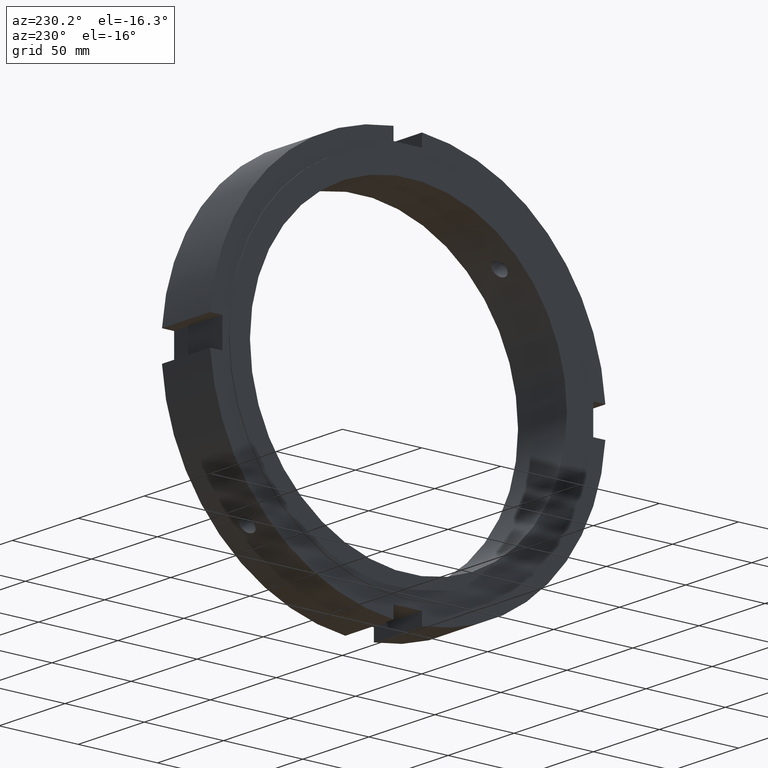
[diagram: clean part render]
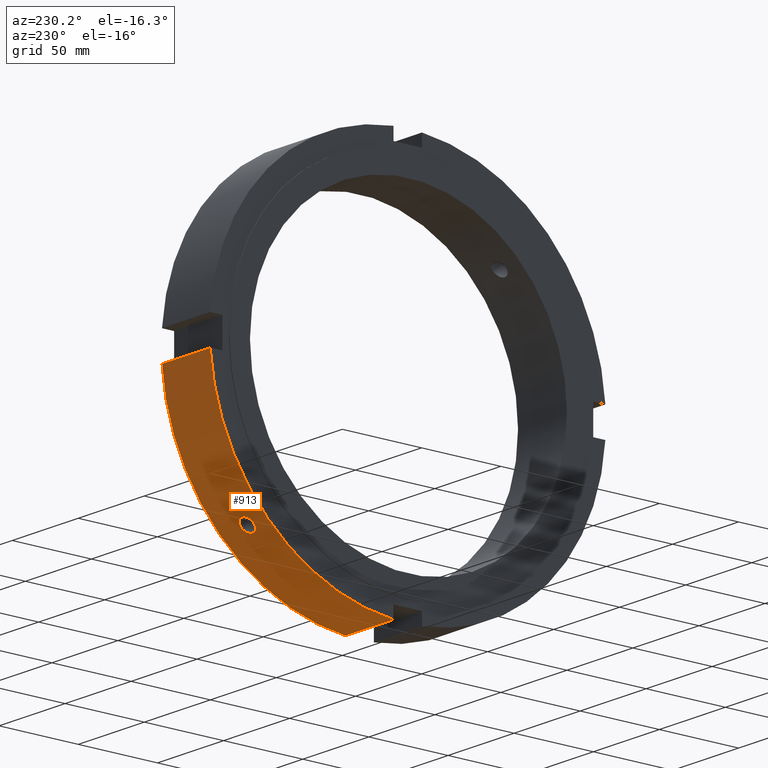
[diagram: same view with one face highlighted and labeled with its STEP entity id]
A machine part, auxiliary view. The second image highlights one B-rep face of the part: STEP entity #913.
In plain terms, the highlighted cylindrical surface (partial cylindrical patch) has radius 125 mm, axis along (1, 0, 0).
Its self-contained STEP definition (entity closure, byte-faithful):
#423=CARTESIAN_POINT('',(15.999999999999979,84.929044096792254,-91.717269196183096));
#424=VERTEX_POINT('',#423);
#425=CARTESIAN_POINT('',(15.999999999999979,84.929044096792254,-91.717269196183111));
#426=CARTESIAN_POINT('',(16.602762291195674,84.929044096792254,-91.717269196183111));
#427=CARTESIAN_POINT('',(17.24566109136682,85.017634822701922,-91.635483517042132));
#428=CARTESIAN_POINT('',(18.428264359493539,85.376326147910049,-91.301385551895336));
#429=CARTESIAN_POINT('',(18.967973842738761,85.646247709419683,-91.048898848249877));
#430=CARTESIAN_POINT('',(19.820251225364906,86.265268587534521,-90.462617492950983));
#431=CARTESIAN_POINT('',(20.189649674550672,86.655615457474198,-90.089699871077414));
#432=CARTESIAN_POINT('',(20.67952570217393,87.504132546217548,-89.265763316667673));
#433=CARTESIAN_POINT('',(20.799999999999976,87.962130376063328,-88.814564920573517));
#434=CARTESIAN_POINT('',(20.799999999999979,88.814564920573531,-87.962130376063328));
#435=CARTESIAN_POINT('',(20.679525702173933,89.265763316667687,-87.504132546217534));
#436=CARTESIAN_POINT('',(20.189649674550662,90.089699871077457,-86.65561545747417));
#437=CARTESIAN_POINT('',(19.82025122536491,90.462617492950997,-86.265268587534479));
#438=CARTESIAN_POINT('',(18.967973842738747,91.04889884824992,-85.64624770941964));
#439=CARTESIAN_POINT('',(18.428264359493514,91.301385551895351,-85.376326147910021));
#440=CARTESIAN_POINT('',(17.245661091366802,91.635483517042147,-85.017634822701908));
#441=CARTESIAN_POINT('',(16.602762291195674,91.717269196183111,-84.929044096792211));
#442=CARTESIAN_POINT('',(15.397237708804283,91.717269196183111,-84.929044096792211));
#443=CARTESIAN_POINT('',(14.754338908633159,91.635483517042147,-85.017634822701908));
#444=CARTESIAN_POINT('',(13.571735640506446,91.301385551895351,-85.376326147910021));
#445=CARTESIAN_POINT('',(13.03202615726121,91.04889884824992,-85.64624770941964));
#446=CARTESIAN_POINT('',(12.179748774635048,90.462617492950997,-86.265268587534479));
#447=CARTESIAN_POINT('',(11.810350325449297,90.089699871077457,-86.65561545747417));
#448=CARTESIAN_POINT('',(11.320474297826026,89.265763316667687,-87.504132546217534));
#449=CARTESIAN_POINT('',(11.199999999999978,88.814564920573531,-87.962130376063328));
#450=CARTESIAN_POINT('',(11.199999999999978,87.962130376063328,-88.814564920573531));
#451=CARTESIAN_POINT('',(11.320474297826031,87.504132546217534,-89.265763316667659));
#452=CARTESIAN_POINT('',(11.810350325449274,86.655615457474212,-90.0896998710774));
#453=CARTESIAN_POINT('',(12.179748774635048,86.265268587534536,-90.462617492950983));
#454=CARTESIAN_POINT('',(13.032026157261196,85.646247709419683,-91.048898848249877));
#455=CARTESIAN_POINT('',(13.57173564050642,85.376326147910049,-91.301385551895336));
#456=CARTESIAN_POINT('',(14.754338908633137,85.017634822701922,-91.635483517042132));
#457=CARTESIAN_POINT('',(15.397237708804282,84.929044096792239,-91.717269196183111));
#458=CARTESIAN_POINT('',(15.999999999999977,84.929044096792239,-91.717269196183111));
#459=B_SPLINE_CURVE_WITH_KNOTS('',3,(#425,#426,#427,#428,#429,#430,#431,#432,#433,#434,#435,#436,#437,#438,#439,#440,#441,#442,#443,#444,#445,#446,#447,#448,#449,#450,#451,#452,#453,#454,#455,#456,#457,#458),.UNSPECIFIED.,.T.,.U.,(4,2,2,2,2,2,2,2,2,2,2,2,2,2,2,2,4),(0.0,0.180828687358709,0.361657374717418,0.542486048799665,0.723314722881913,0.904143396964163,1.084972071046413,1.265800758405121,1.44662944576383,1.627458133122538,1.808286820481246,1.989115494563496,2.169944168645746,2.350772842727994,2.531601516810241,2.71243020416895,2.893258891527659),.UNSPECIFIED.);
#460=EDGE_CURVE('',#424,#424,#459,.T.);
#557=CARTESIAN_POINT('',(0.499999999999963,8.99999999999997,-124.67557900406959));
#558=VERTEX_POINT('',#557);
#567=CARTESIAN_POINT('',(36.999999999999972,8.99999999999997,-124.67557900406959));
#568=VERTEX_POINT('',#567);
#569=CARTESIAN_POINT('',(36.999999999999972,8.99999999999997,-124.67557900406959));
#570=DIRECTION('',(-1.0,0.0,0.0));
#571=VECTOR('',#570,36.500000000000007);
#572=LINE('',#569,#571);
#573=EDGE_CURVE('',#568,#558,#572,.T.);
#878=CARTESIAN_POINT('',(18.749999999999968,0.0,0.0));
#879=DIRECTION('',(1.0,0.0,0.0));
#880=DIRECTION('',(0.0,1.0,0.0));
#881=AXIS2_PLACEMENT_3D('',#878,#879,#880);
#882=CYLINDRICAL_SURFACE('',#881,125.0);
#883=ORIENTED_EDGE('',*,*,#573,.T.);
#884=CARTESIAN_POINT('',(0.499999999999963,124.67557900406959,-8.999999999999993));
#885=VERTEX_POINT('',#884);
#886=CARTESIAN_POINT('',(0.499999999999963,0.0,0.0));
#887=DIRECTION('',(1.0,0.0,0.0));
#888=DIRECTION('',(0.0,1.0,0.0));
#889=AXIS2_PLACEMENT_3D('',#886,#887,#888);
#890=CIRCLE('',#889,125.0);
#891=EDGE_CURVE('',#558,#885,#890,.T.);
#892=ORIENTED_EDGE('',*,*,#891,.T.);
#893=CARTESIAN_POINT('',(36.999999999999972,124.67557900406959,-8.999999999999993));
#894=VERTEX_POINT('',#893);
#895=CARTESIAN_POINT('',(0.499999999999964,124.67557900406959,-8.999999999999993));
#896=DIRECTION('',(1.0,0.0,0.0));
#897=VECTOR('',#896,36.500000000000007);
#898=LINE('',#895,#897);
#899=EDGE_CURVE('',#885,#894,#898,.T.);
#900=ORIENTED_EDGE('',*,*,#899,.T.);
#901=CARTESIAN_POINT('',(36.999999999999972,0.0,0.0));
#902=DIRECTION('',(1.0,0.0,0.0));
#903=DIRECTION('',(0.0,1.0,0.0));
#904=AXIS2_PLACEMENT_3D('',#901,#902,#903);
#905=CIRCLE('',#904,125.0);
#906=EDGE_CURVE('',#568,#894,#905,.T.);
#907=ORIENTED_EDGE('',*,*,#906,.F.);
#908=EDGE_LOOP('',(#883,#892,#900,#907));
#909=FACE_OUTER_BOUND('',#908,.T.);
#910=ORIENTED_EDGE('',*,*,#460,.T.);
#911=EDGE_LOOP('',(#910));
#912=FACE_BOUND('',#911,.T.);
#913=ADVANCED_FACE('',(#909,#912),#882,.T.);